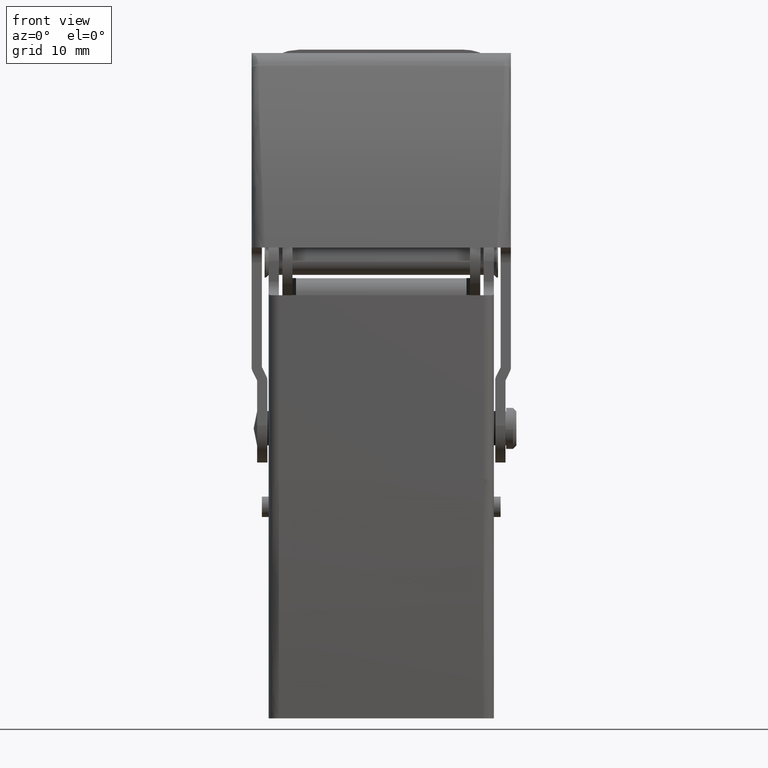
[diagram: clean part render]
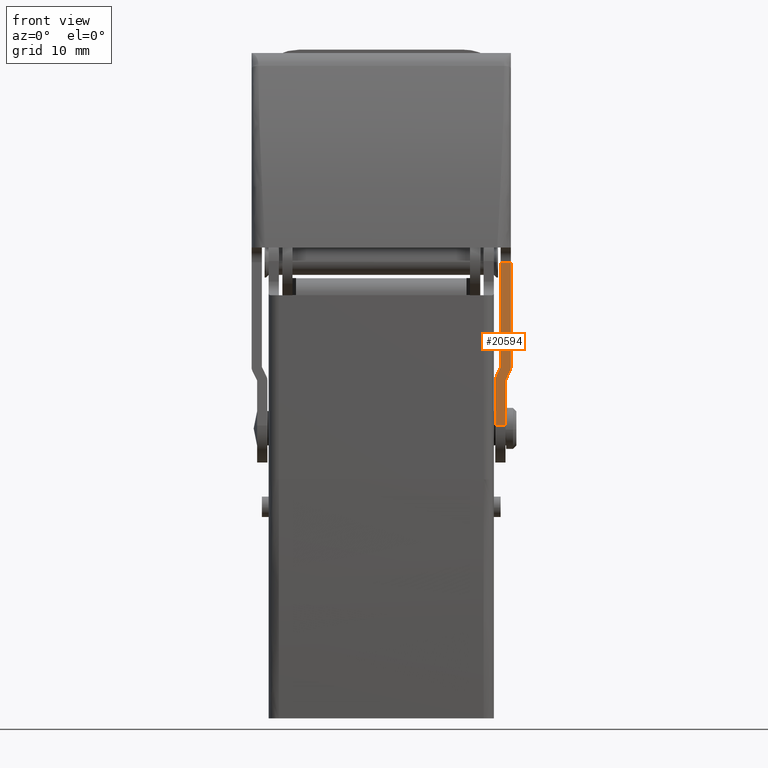
[diagram: same view with one face highlighted and labeled with its STEP entity id]
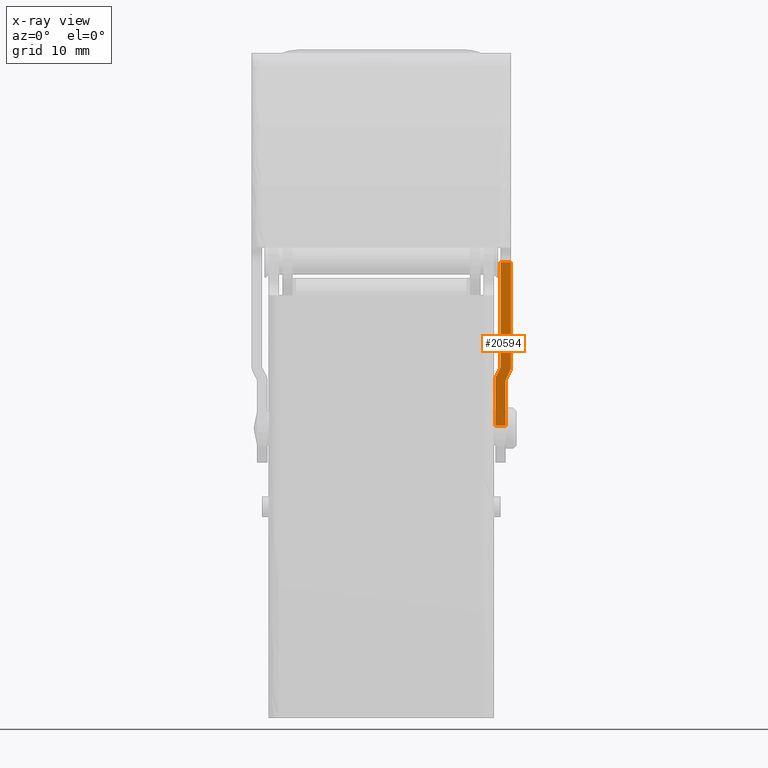
[diagram: x-ray of the same camera — body ghosted, the highlighted face saturated]
A machine part, front view. The second image highlights one B-rep face of the part: STEP entity #20594.
The next image is the same camera in x-ray: the body ghosted, the highlighted face saturated — about 0% of this face is hidden behind the body in this view.
In plain terms, the highlighted face is a freeform B-spline surface patch.
Its self-contained STEP definition (entity closure, byte-faithful):
#19128=CARTESIAN_POINT('',(18.200000000002550,-16.438789607205852,1.499999999848688));
#19129=VERTEX_POINT('',#19128);
#19135=CARTESIAN_POINT('',(18.200000000004099,-16.983027511585149,-5.088372961682010));
#19136=VERTEX_POINT('',#19135);
#19137=CARTESIAN_POINT('',(18.200000000002550,-16.438789607205852,1.499999999848688));
#19138=CARTESIAN_POINT('',(18.200000000004099,-16.983027511585149,-5.088372961682010));
#19139=QUASI_UNIFORM_CURVE('',1,(#19137,#19138),.UNSPECIFIED.,.F.,.U.);
#19140=EDGE_CURVE('',#19129,#19136,#19139,.T.);
#19171=CARTESIAN_POINT('',(16.700000000002500,-16.429339933159451,1.614394782869110));
#19172=VERTEX_POINT('',#19171);
#19173=CARTESIAN_POINT('',(16.700000000002500,-16.983027511585149,-5.088372961682010));
#19174=VERTEX_POINT('',#19173);
#19175=CARTESIAN_POINT('',(16.700000000002500,-16.429339933159451,1.614394782869110));
#19176=CARTESIAN_POINT('',(16.700000000002500,-16.983027511585149,-5.088372961682010));
#19177=QUASI_UNIFORM_CURVE('',1,(#19175,#19176),.UNSPECIFIED.,.F.,.U.);
#19178=EDGE_CURVE('',#19172,#19174,#19177,.T.);
#19421=CARTESIAN_POINT('',(18.999999999964949,-16.283027655396850,3.385605216752445));
#19422=VERTEX_POINT('',#19421);
#19428=CARTESIAN_POINT('',(18.900518019880248,-16.318946207012051,2.950786523723215));
#19429=VERTEX_POINT('',#19428);
#19430=CARTESIAN_POINT('',(18.900518019880248,-16.318946207012051,2.950786523723215));
#19431=CARTESIAN_POINT('',(18.999999983614860,-16.301927006286867,3.156815616850123));
#19432=CARTESIAN_POINT('',(18.999999999964949,-16.283027661300100,3.385605145288987));
#19440=(BOUNDED_CURVE()B_SPLINE_CURVE(2,(#19430,#19431,#19432),.UNSPECIFIED.,.F.,.U.)CURVE()GEOMETRIC_REPRESENTATION_ITEM()QUASI_UNIFORM_CURVE()RATIONAL_B_SPLINE_CURVE((1.0,0.974812302699593,1.0))REPRESENTATION_ITEM(''));
#19441=EDGE_CURVE('',#19429,#19422,#19440,.T.);
#19467=CARTESIAN_POINT('',(16.799481980087151,-16.393421381544250,2.049213475898095));
#19468=VERTEX_POINT('',#19467);
#19469=CARTESIAN_POINT('',(16.799481980087151,-16.393421381544250,2.049213475898095));
#19470=CARTESIAN_POINT('',(16.700000000002504,-16.410440585066524,1.843184348910001));
#19471=CARTESIAN_POINT('',(16.700000000002500,-16.429339933159451,1.614394782869110));
#19479=(BOUNDED_CURVE()B_SPLINE_CURVE(2,(#19469,#19470,#19471),.UNSPECIFIED.,.F.,.U.)CURVE()GEOMETRIC_REPRESENTATION_ITEM()QUASI_UNIFORM_CURVE()RATIONAL_B_SPLINE_CURVE((1.0,0.974812294730456,1.0))REPRESENTATION_ITEM(''));
#19480=EDGE_CURVE('',#19468,#19172,#19479,.T.);
#20289=CARTESIAN_POINT('',(17.500000000000998,-16.273577981341901,3.499999999847605));
#20290=VERTEX_POINT('',#20289);
#20291=CARTESIAN_POINT('',(16.799481980087151,-16.393421381544250,2.049213475898095));
#20292=CARTESIAN_POINT('',(17.500000000000998,-16.273577981341901,3.499999999847605));
#20293=QUASI_UNIFORM_CURVE('',1,(#20291,#20292),.UNSPECIFIED.,.F.,.U.);
#20294=EDGE_CURVE('',#19468,#20290,#20293,.T.);
#20311=CARTESIAN_POINT('',(18.900518019880248,-16.318946207012051,2.950786523723215));
#20312=CARTESIAN_POINT('',(18.200000000002550,-16.438789607205852,1.499999999848688));
#20313=QUASI_UNIFORM_CURVE('',1,(#20311,#20312),.UNSPECIFIED.,.F.,.U.);
#20314=EDGE_CURVE('',#19429,#19129,#20313,.T.);
#20335=CARTESIAN_POINT('',(16.700000000002500,-16.983027511585149,-5.088372961682010));
#20336=CARTESIAN_POINT('',(18.200000000004099,-16.983027511585149,-5.088372961682010));
#20337=QUASI_UNIFORM_CURVE('',1,(#20335,#20336),.UNSPECIFIED.,.F.,.U.);
#20338=EDGE_CURVE('',#19174,#19136,#20337,.T.);
#20533=CARTESIAN_POINT('',(18.999999999964949,-15.006788995366099,18.835349184510651));
#20534=VERTEX_POINT('',#20533);
#20535=CARTESIAN_POINT('',(18.999999999964949,-15.006788995366099,18.835349184510651));
#20536=CARTESIAN_POINT('',(18.999999999964949,-16.283027655396850,3.385605216752445));
#20537=QUASI_UNIFORM_CURVE('',1,(#20535,#20536),.UNSPECIFIED.,.F.,.U.);
#20538=EDGE_CURVE('',#20534,#19422,#20537,.T.);
#20567=CARTESIAN_POINT('',(16.585115004462221,-14.908075885310989,20.030339059344129));
#20568=CARTESIAN_POINT('',(16.585115004462221,-17.081740674646859,-6.283363478199744));
#20569=CARTESIAN_POINT('',(19.114885057196030,-14.908075885310989,20.030339059344129));
#20570=CARTESIAN_POINT('',(19.114885057196030,-17.081740674646859,-6.283363478199744));
#20571=B_SPLINE_SURFACE_WITH_KNOTS('',1,1,((#20567,#20569),(#20568,#20570)),.UNSPECIFIED.,.F.,.F.,.U.,(2,2),(2,2),(0.0,26.403328575214552),(0.0,2.529770052733813),.UNSPECIFIED.);
#20572=ORIENTED_EDGE('',*,*,#20294,.F.);
#20573=ORIENTED_EDGE('',*,*,#19480,.T.);
#20574=ORIENTED_EDGE('',*,*,#19178,.T.);
#20575=ORIENTED_EDGE('',*,*,#20338,.T.);
#20576=ORIENTED_EDGE('',*,*,#19140,.F.);
#20577=ORIENTED_EDGE('',*,*,#20314,.F.);
#20578=ORIENTED_EDGE('',*,*,#19441,.T.);
#20579=ORIENTED_EDGE('',*,*,#20538,.F.);
#20580=CARTESIAN_POINT('',(17.499999999987200,-15.006788995366099,18.835349184510651));
#20581=VERTEX_POINT('',#20580);
#20582=CARTESIAN_POINT('',(17.499999999987200,-15.006788995366099,18.835349184510651));
#20583=CARTESIAN_POINT('',(18.999999999964949,-15.006788995366099,18.835349184510651));
#20584=QUASI_UNIFORM_CURVE('',1,(#20582,#20583),.UNSPECIFIED.,.F.,.U.);
#20585=EDGE_CURVE('',#20581,#20534,#20584,.T.);
#20586=ORIENTED_EDGE('',*,*,#20585,.F.);
#20587=CARTESIAN_POINT('',(17.499999999987200,-15.006788995366099,18.835349184510651));
#20588=CARTESIAN_POINT('',(17.500000000000998,-16.273577981341901,3.499999999847605));
#20589=QUASI_UNIFORM_CURVE('',1,(#20587,#20588),.UNSPECIFIED.,.F.,.U.);
#20590=EDGE_CURVE('',#20581,#20290,#20589,.T.);
#20591=ORIENTED_EDGE('',*,*,#20590,.T.);
#20592=EDGE_LOOP('',(#20572,#20573,#20574,#20575,#20576,#20577,#20578,#20579,#20586,#20591));
#20593=FACE_OUTER_BOUND('',#20592,.T.);
#20594=ADVANCED_FACE('',(#20593),#20571,.T.);